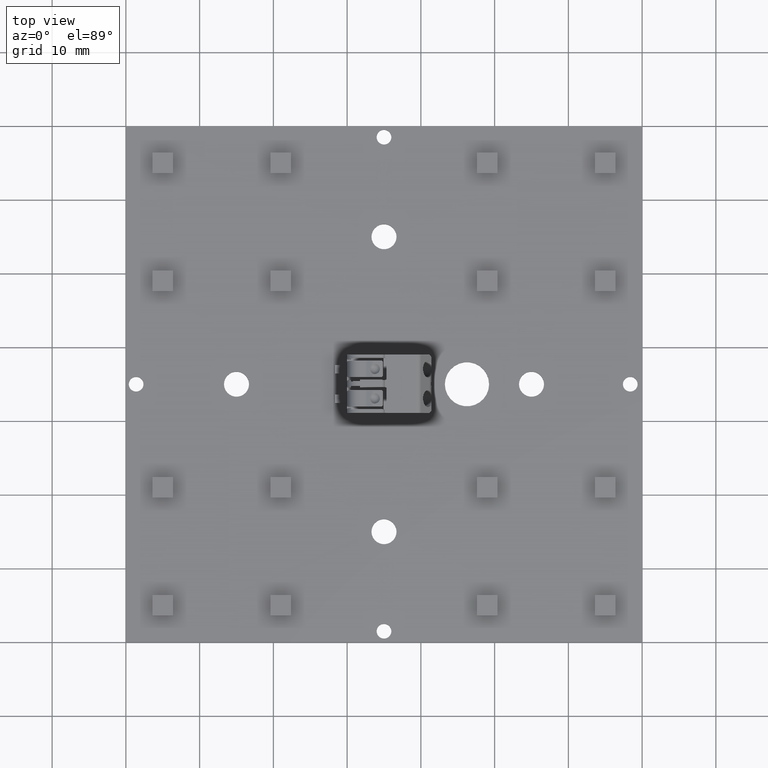
[diagram: clean part render]
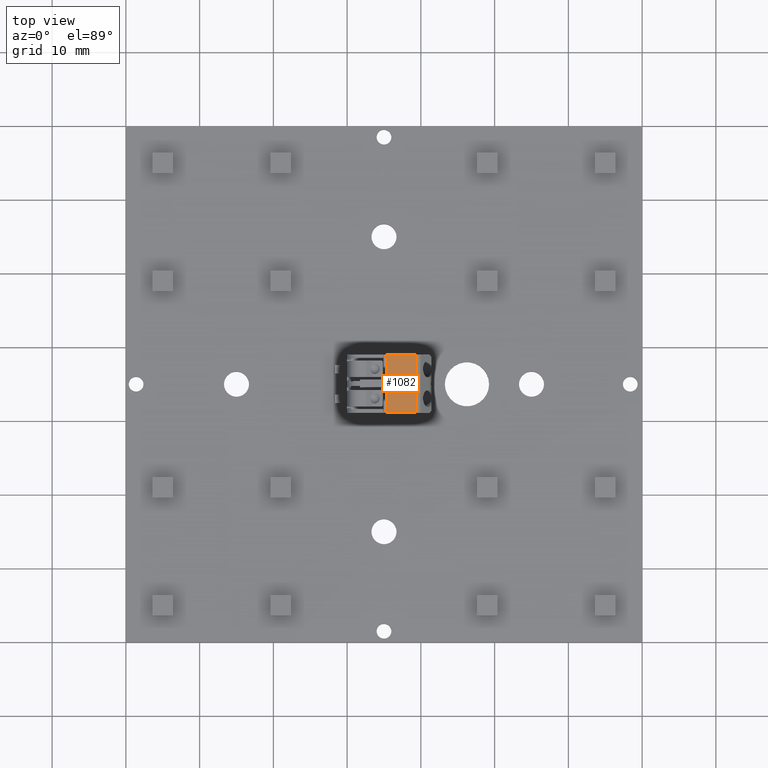
[diagram: same view with one face highlighted and labeled with its STEP entity id]
A machine part, top view. The second image highlights one B-rep face of the part: STEP entity #1082.
In plain terms, the highlighted planar face has unit normal (0, 0, -1).
Its self-contained STEP definition (entity closure, byte-faithful):
#992=CIRCLE('',#4358,0.200000000000034);
#993=CIRCLE('',#4359,0.200000000000018);
#994=CIRCLE('',#4360,0.200000000000036);
#995=CIRCLE('',#4361,0.200000000000017);
#1082=ADVANCED_FACE('',(#1366),#1238,.F.);
#1238=PLANE('',#4362);
#1366=FACE_OUTER_BOUND('',#1571,.T.);
#1571=EDGE_LOOP('',(#2119,#2120,#2121,#2122,#2123,#2124,#2125,#2126,#2127,
#2128,#2129,#2130));
#2119=ORIENTED_EDGE('',*,*,#3350,.F.);
#2120=ORIENTED_EDGE('',*,*,#3351,.F.);
#2121=ORIENTED_EDGE('',*,*,#3237,.F.);
#2122=ORIENTED_EDGE('',*,*,#3352,.F.);
#2123=ORIENTED_EDGE('',*,*,#3348,.T.);
#2124=ORIENTED_EDGE('',*,*,#3353,.T.);
#2125=ORIENTED_EDGE('',*,*,#3258,.F.);
#2126=ORIENTED_EDGE('',*,*,#3354,.F.);
#2127=ORIENTED_EDGE('',*,*,#3355,.F.);
#2128=ORIENTED_EDGE('',*,*,#3356,.F.);
#2129=ORIENTED_EDGE('',*,*,#3241,.F.);
#2130=ORIENTED_EDGE('',*,*,#3357,.F.);
#2882=VERTEX_POINT('',#5995);
#2883=VERTEX_POINT('',#5997);
#2886=VERTEX_POINT('',#6022);
#2887=VERTEX_POINT('',#6024);
#2898=VERTEX_POINT('',#6074);
#2899=VERTEX_POINT('',#6076);
#2955=VERTEX_POINT('',#6349);
#2956=VERTEX_POINT('',#6351);
#2957=VERTEX_POINT('',#6355);
#2958=VERTEX_POINT('',#6356);
#2959=VERTEX_POINT('',#6361);
#2960=VERTEX_POINT('',#6363);
#3237=EDGE_CURVE('',#2882,#2883,#3678,.T.);
#3241=EDGE_CURVE('',#2886,#2887,#3679,.T.);
#3258=EDGE_CURVE('',#2898,#2899,#3690,.T.);
#3348=EDGE_CURVE('',#2956,#2955,#3740,.T.);
#3350=EDGE_CURVE('',#2957,#2958,#3741,.T.);
#3351=EDGE_CURVE('',#2883,#2957,#992,.T.);
#3352=EDGE_CURVE('',#2956,#2882,#3742,.T.);
#3353=EDGE_CURVE('',#2955,#2899,#3743,.T.);
#3354=EDGE_CURVE('',#2959,#2898,#993,.T.);
#3355=EDGE_CURVE('',#2960,#2959,#3744,.T.);
#3356=EDGE_CURVE('',#2887,#2960,#994,.T.);
#3357=EDGE_CURVE('',#2958,#2886,#995,.T.);
#3678=LINE('',#5996,#4029);
#3679=LINE('',#6023,#4030);
#3690=LINE('',#6075,#4041);
#3740=LINE('',#6350,#4091);
#3741=LINE('',#6354,#4092);
#3742=LINE('',#6358,#4093);
#3743=LINE('',#6359,#4094);
#3744=LINE('',#6362,#4095);
#4029=VECTOR('',#4877,1.);
#4030=VECTOR('',#4882,1.);
#4041=VECTOR('',#4911,1.);
#4091=VECTOR('',#5055,1.);
#4092=VECTOR('',#5060,1.);
#4093=VECTOR('',#5063,1.);
#4094=VECTOR('',#5064,1.);
#4095=VECTOR('',#5067,1.);
#4358=AXIS2_PLACEMENT_3D('',#6357,#5061,#5062);
#4359=AXIS2_PLACEMENT_3D('',#6360,#5065,#5066);
#4360=AXIS2_PLACEMENT_3D('',#6364,#5068,#5069);
#4361=AXIS2_PLACEMENT_3D('',#6365,#5070,#5071);
#4362=AXIS2_PLACEMENT_3D('',#6366,#5072,#5073);
#4877=DIRECTION('',(0.,0.,-1.));
#4882=DIRECTION('',(0.,0.,-1.));
#4911=DIRECTION('',(0.,0.,-1.));
#5055=DIRECTION('',(0.,0.,-1.));
#5060=DIRECTION('',(0.,0.,-1.));
#5061=DIRECTION('',(0.,1.,0.));
#5062=DIRECTION('',(-1.,0.,0.));
#5063=DIRECTION('',(-1.,0.,0.));
#5064=DIRECTION('',(-1.,0.,0.));
#5065=DIRECTION('',(0.,1.,0.));
#5066=DIRECTION('',(1.,0.,0.));
#5067=DIRECTION('',(0.,0.,-1.));
#5068=DIRECTION('',(0.,1.,0.));
#5069=DIRECTION('',(-0.999999999999999,0.,0.));
#5070=DIRECTION('',(0.,1.,0.));
#5071=DIRECTION('',(1.,0.,0.));
#5072=DIRECTION('',(0.,-1.,0.));
#5073=DIRECTION('',(0.,0.,-1.));
#5995=CARTESIAN_POINT('',(-6.1845299461621,3.8,7.9));
#5996=CARTESIAN_POINT('',(-6.1845299461621,3.8,7.9));
#5997=CARTESIAN_POINT('',(-6.18452994616213,3.8,7.41329931618557));
#6022=CARTESIAN_POINT('',(-6.1845299461621,3.8,4.48670068381445));
#6023=CARTESIAN_POINT('',(-6.1845299461621,3.8,7.9));
#6024=CARTESIAN_POINT('',(-6.18452994616213,3.8,3.41329931618557));
#6074=CARTESIAN_POINT('',(-6.18452994616213,3.8,0.486700683814426));
#6075=CARTESIAN_POINT('',(-6.1845299461621,3.8,7.9));
#6076=CARTESIAN_POINT('',(-6.1845299461621,3.8,0.));
#6349=CARTESIAN_POINT('',(-2.1,3.8,0.));
#6350=CARTESIAN_POINT('',(-2.1,3.8,7.9));
#6351=CARTESIAN_POINT('',(-2.1,3.8,7.9));
#6354=CARTESIAN_POINT('',(-6.1,3.8,7.25));
#6355=CARTESIAN_POINT('',(-6.1,3.8,7.25));
#6356=CARTESIAN_POINT('',(-6.1,3.8,4.65));
#6357=CARTESIAN_POINT('',(-6.3,3.8,7.25));
#6358=CARTESIAN_POINT('',(-2.1,3.8,7.9));
#6359=CARTESIAN_POINT('',(-2.1,3.8,0.));
#6360=CARTESIAN_POINT('',(-6.3,3.8,0.650000000000018));
#6361=CARTESIAN_POINT('',(-6.1,3.8,0.65));
#6362=CARTESIAN_POINT('',(-6.1,3.8,3.25));
#6363=CARTESIAN_POINT('',(-6.1,3.8,3.24999999999996));
#6364=CARTESIAN_POINT('',(-6.3,3.8,3.24999999999996));
#6365=CARTESIAN_POINT('',(-6.3,3.8,4.65));
#6366=CARTESIAN_POINT('',(-2.1,3.8,7.9));